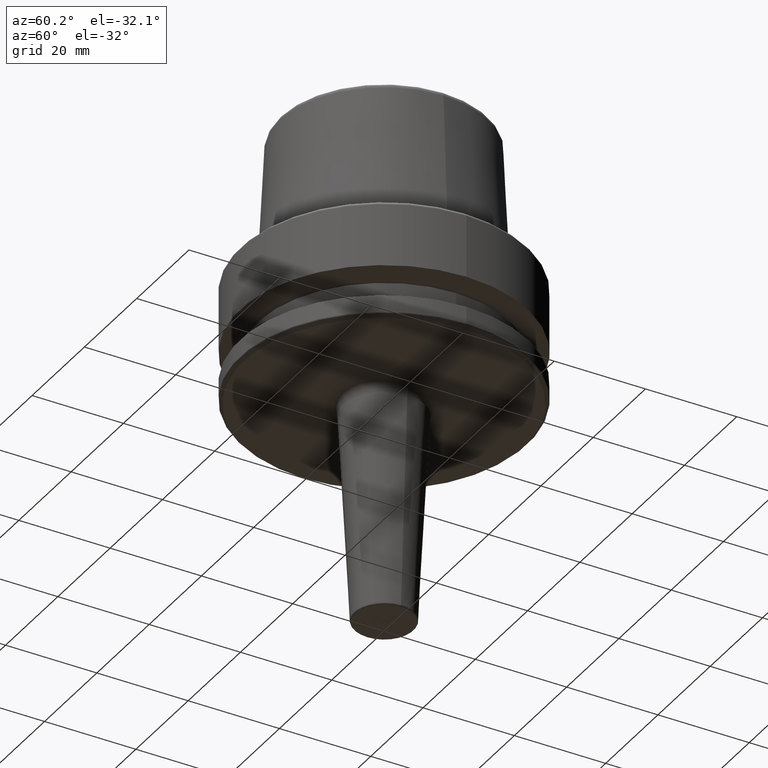
[diagram: clean part render]
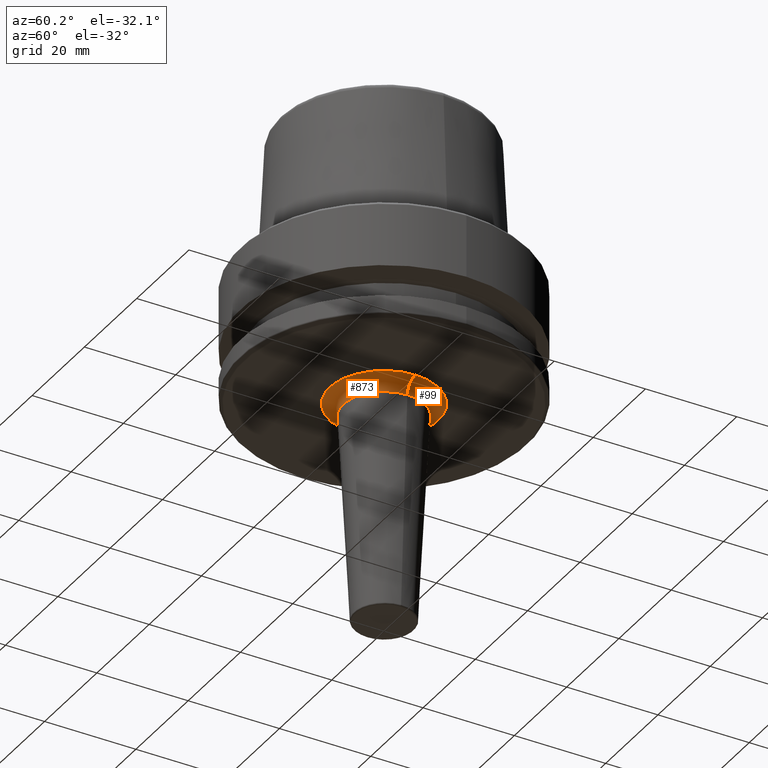
[diagram: same view with one multi-face feature highlighted, each face labeled with its STEP entity id]
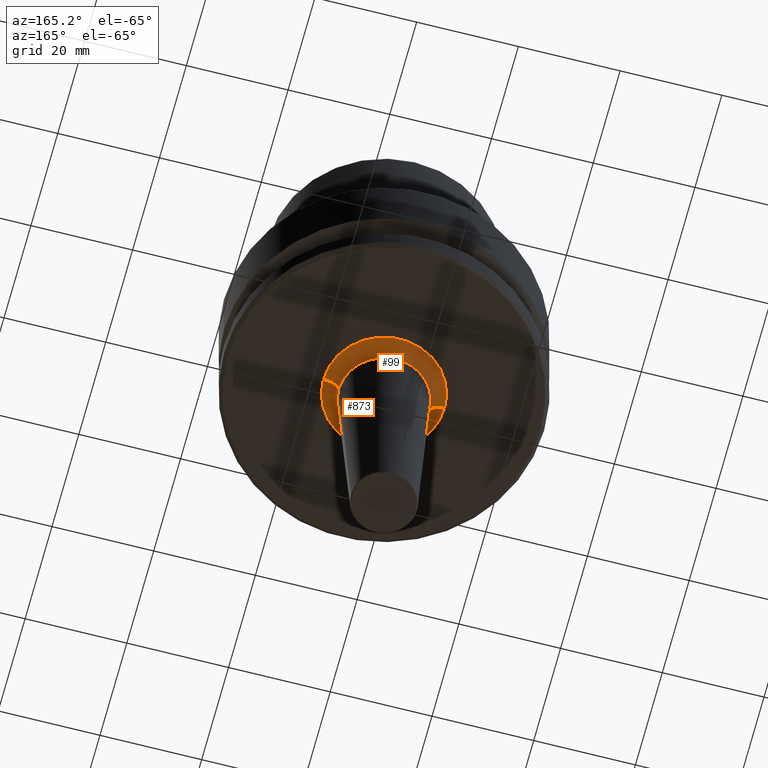
[diagram: same view with one multi-face feature highlighted, each face labeled with its STEP entity id]
A machine part, auxiliary view. The highlighted faces form ONE feature: a constant-radius fillet chain: 2 tangent blend faces with common blend radius 3 mm. The faces share edges in the B-rep.
A second angle (auxiliary view) of the same feature is appended — it is thin or edge-on in the first view.
Their STEP definitions:
[1] entity #99 (Torus):
#3 = ORIENTED_EDGE ( 'NONE', *, *, #956, .T. ) ;
#6 = CIRCLE ( 'NONE', #744, 11.91487488501366200 ) ;
#48 = TOROIDAL_SURFACE ( 'NONE', #454, 11.91487488501366200, 3.000000000000000000 ) ;
#55 = DIRECTION ( 'NONE',  ( 1.000000000000000000, 0.0000000000000000000, 0.0000000000000000000 ) ) ;
#84 = ORIENTED_EDGE ( 'NONE', *, *, #669, .F. ) ;
#99 = ADVANCED_FACE ( 'NONE', ( #989 ), #48, .F. ) ;
#127 = CARTESIAN_POINT ( 'NONE',  ( 8.918986280749940900, 0.0000000000000000000, -28.84299213127117400 ) ) ;
#128 = CIRCLE ( 'NONE', #253, 3.000000000000002700 ) ;
#201 = DIRECTION ( 'NONE',  ( 0.0000000000000000000, 0.0000000000000000000, -1.000000000000000000 ) ) ;
#253 = AXIS2_PLACEMENT_3D ( 'NONE', #279, #950, #373 ) ;
#279 = CARTESIAN_POINT ( 'NONE',  ( 11.91487488501366200, 0.0000000000000000000, -29.00000000000000400 ) ) ;
#314 = DIRECTION ( 'NONE',  ( -0.0000000000000000000, -0.0000000000000000000, 1.000000000000000000 ) ) ;
#359 = DIRECTION ( 'NONE',  ( 1.224646799147353200E-016, 1.000000000000000000, 0.0000000000000000000 ) ) ;
#373 = DIRECTION ( 'NONE',  ( 0.0000000000000000000, 0.0000000000000000000, -1.000000000000000000 ) ) ;
#398 = VERTEX_POINT ( 'NONE', #860 ) ;
#418 = EDGE_CURVE ( 'NONE', #398, #457, #865, .T. ) ;
#454 = AXIS2_PLACEMENT_3D ( 'NONE', #1217, #634, #55 ) ;
#457 = VERTEX_POINT ( 'NONE', #1134 ) ;
#472 = ORIENTED_EDGE ( 'NONE', *, *, #418, .F. ) ;
#630 = VERTEX_POINT ( 'NONE', #716 ) ;
#634 = DIRECTION ( 'NONE',  ( -0.0000000000000000000, -0.0000000000000000000, 1.000000000000000000 ) ) ;
#669 = EDGE_CURVE ( 'NONE', #630, #398, #6, .T. ) ;
#716 = CARTESIAN_POINT ( 'NONE',  ( 11.91487488501366200, 0.0000000000000000000, -26.00000000000000700 ) ) ;
#744 = AXIS2_PLACEMENT_3D ( 'NONE', #897, #314, #997 ) ;
#750 = ORIENTED_EDGE ( 'NONE', *, *, #881, .F. ) ;
#755 = VERTEX_POINT ( 'NONE', #127 ) ;
#767 = AXIS2_PLACEMENT_3D ( 'NONE', #940, #359, #1038 ) ;
#774 = CARTESIAN_POINT ( 'NONE',  ( 0.0000000000000000000, 0.0000000000000000000, -28.84299213127117400 ) ) ;
#860 = CARTESIAN_POINT ( 'NONE',  ( -11.91487488501366200, 1.459151339017317000E-015, -26.00000000000000700 ) ) ;
#865 = CIRCLE ( 'NONE', #767, 2.999999999999999100 ) ;
#875 = DIRECTION ( 'NONE',  ( 1.000000000000000000, 0.0000000000000000000, 0.0000000000000000000 ) ) ;
#881 = EDGE_CURVE ( 'NONE', #457, #755, #967, .T. ) ;
#897 = CARTESIAN_POINT ( 'NONE',  ( 0.0000000000000000000, 0.0000000000000000000, -26.00000000000000700 ) ) ;
#940 = CARTESIAN_POINT ( 'NONE',  ( -11.91487488501366200, 1.459151339017317000E-015, -29.00000000000000400 ) ) ;
#950 = DIRECTION ( 'NONE',  ( 0.0000000000000000000, -1.000000000000000000, 0.0000000000000000000 ) ) ;
#956 = EDGE_CURVE ( 'NONE', #630, #755, #128, .T. ) ;
#967 = CIRCLE ( 'NONE', #1059, 8.918986280749940900 ) ;
#982 = EDGE_LOOP ( 'NONE', ( #472, #84, #3, #750 ) ) ;
#989 = FACE_OUTER_BOUND ( 'NONE', #982, .T. ) ;
#997 = DIRECTION ( 'NONE',  ( 1.000000000000000000, 0.0000000000000000000, 0.0000000000000000000 ) ) ;
#1038 = DIRECTION ( 'NONE',  ( -1.000000000000000000, 1.224646799147353500E-016, 0.0000000000000000000 ) ) ;
#1059 = AXIS2_PLACEMENT_3D ( 'NONE', #774, #201, #875 ) ;
#1134 = CARTESIAN_POINT ( 'NONE',  ( -8.918986280749940900, 1.092260800035957200E-015, -28.84299213127117400 ) ) ;
#1217 = CARTESIAN_POINT ( 'NONE',  ( 0.0000000000000000000, 0.0000000000000000000, -29.00000000000000400 ) ) ;
[2] entity #873 (Torus):
#96 = ORIENTED_EDGE ( 'NONE', *, *, #418, .T. ) ;
#127 = CARTESIAN_POINT ( 'NONE',  ( 8.918986280749940900, 0.0000000000000000000, -28.84299213127117400 ) ) ;
#128 = CIRCLE ( 'NONE', #253, 3.000000000000002700 ) ;
#144 = DIRECTION ( 'NONE',  ( 0.0000000000000000000, 0.0000000000000000000, -1.000000000000000000 ) ) ;
#180 = CIRCLE ( 'NONE', #205, 8.918986280749940900 ) ;
#205 = AXIS2_PLACEMENT_3D ( 'NONE', #720, #144, #821 ) ;
#253 = AXIS2_PLACEMENT_3D ( 'NONE', #279, #950, #373 ) ;
#263 = ORIENTED_EDGE ( 'NONE', *, *, #406, .F. ) ;
#279 = CARTESIAN_POINT ( 'NONE',  ( 11.91487488501366200, 0.0000000000000000000, -29.00000000000000400 ) ) ;
#347 = TOROIDAL_SURFACE ( 'NONE', #984, 11.91487488501366200, 3.000000000000000000 ) ;
#359 = DIRECTION ( 'NONE',  ( 1.224646799147353200E-016, 1.000000000000000000, 0.0000000000000000000 ) ) ;
#373 = DIRECTION ( 'NONE',  ( 0.0000000000000000000, 0.0000000000000000000, -1.000000000000000000 ) ) ;
#398 = VERTEX_POINT ( 'NONE', #860 ) ;
#406 = EDGE_CURVE ( 'NONE', #398, #630, #843, .T. ) ;
#418 = EDGE_CURVE ( 'NONE', #398, #457, #865, .T. ) ;
#447 = DIRECTION ( 'NONE',  ( -0.0000000000000000000, -0.0000000000000000000, 1.000000000000000000 ) ) ;
#457 = VERTEX_POINT ( 'NONE', #1134 ) ;
#477 = CARTESIAN_POINT ( 'NONE',  ( 0.0000000000000000000, 0.0000000000000000000, -29.00000000000000400 ) ) ;
#571 = FACE_OUTER_BOUND ( 'NONE', #962, .T. ) ;
#579 = DIRECTION ( 'NONE',  ( -0.0000000000000000000, -0.0000000000000000000, 1.000000000000000000 ) ) ;
#630 = VERTEX_POINT ( 'NONE', #716 ) ;
#696 = AXIS2_PLACEMENT_3D ( 'NONE', #1034, #447, #1128 ) ;
#716 = CARTESIAN_POINT ( 'NONE',  ( 11.91487488501366200, 0.0000000000000000000, -26.00000000000000700 ) ) ;
#720 = CARTESIAN_POINT ( 'NONE',  ( 0.0000000000000000000, 0.0000000000000000000, -28.84299213127117400 ) ) ;
#755 = VERTEX_POINT ( 'NONE', #127 ) ;
#767 = AXIS2_PLACEMENT_3D ( 'NONE', #940, #359, #1038 ) ;
#771 = EDGE_CURVE ( 'NONE', #755, #457, #180, .T. ) ;
#821 = DIRECTION ( 'NONE',  ( 1.000000000000000000, 0.0000000000000000000, 0.0000000000000000000 ) ) ;
#843 = CIRCLE ( 'NONE', #696, 11.91487488501366200 ) ;
#860 = CARTESIAN_POINT ( 'NONE',  ( -11.91487488501366200, 1.459151339017317000E-015, -26.00000000000000700 ) ) ;
#865 = CIRCLE ( 'NONE', #767, 2.999999999999999100 ) ;
#873 = ADVANCED_FACE ( 'NONE', ( #571 ), #347, .F. ) ;
#940 = CARTESIAN_POINT ( 'NONE',  ( -11.91487488501366200, 1.459151339017317000E-015, -29.00000000000000400 ) ) ;
#950 = DIRECTION ( 'NONE',  ( 0.0000000000000000000, -1.000000000000000000, 0.0000000000000000000 ) ) ;
#956 = EDGE_CURVE ( 'NONE', #630, #755, #128, .T. ) ;
#962 = EDGE_LOOP ( 'NONE', ( #263, #96, #1249, #973 ) ) ;
#973 = ORIENTED_EDGE ( 'NONE', *, *, #956, .F. ) ;
#984 = AXIS2_PLACEMENT_3D ( 'NONE', #477, #579, #1261 ) ;
#1034 = CARTESIAN_POINT ( 'NONE',  ( 0.0000000000000000000, 0.0000000000000000000, -26.00000000000000700 ) ) ;
#1038 = DIRECTION ( 'NONE',  ( -1.000000000000000000, 1.224646799147353500E-016, 0.0000000000000000000 ) ) ;
#1128 = DIRECTION ( 'NONE',  ( 1.000000000000000000, 0.0000000000000000000, 0.0000000000000000000 ) ) ;
#1134 = CARTESIAN_POINT ( 'NONE',  ( -8.918986280749940900, 1.092260800035957200E-015, -28.84299213127117400 ) ) ;
#1249 = ORIENTED_EDGE ( 'NONE', *, *, #771, .F. ) ;
#1261 = DIRECTION ( 'NONE',  ( 1.000000000000000000, 0.0000000000000000000, 0.0000000000000000000 ) ) ;